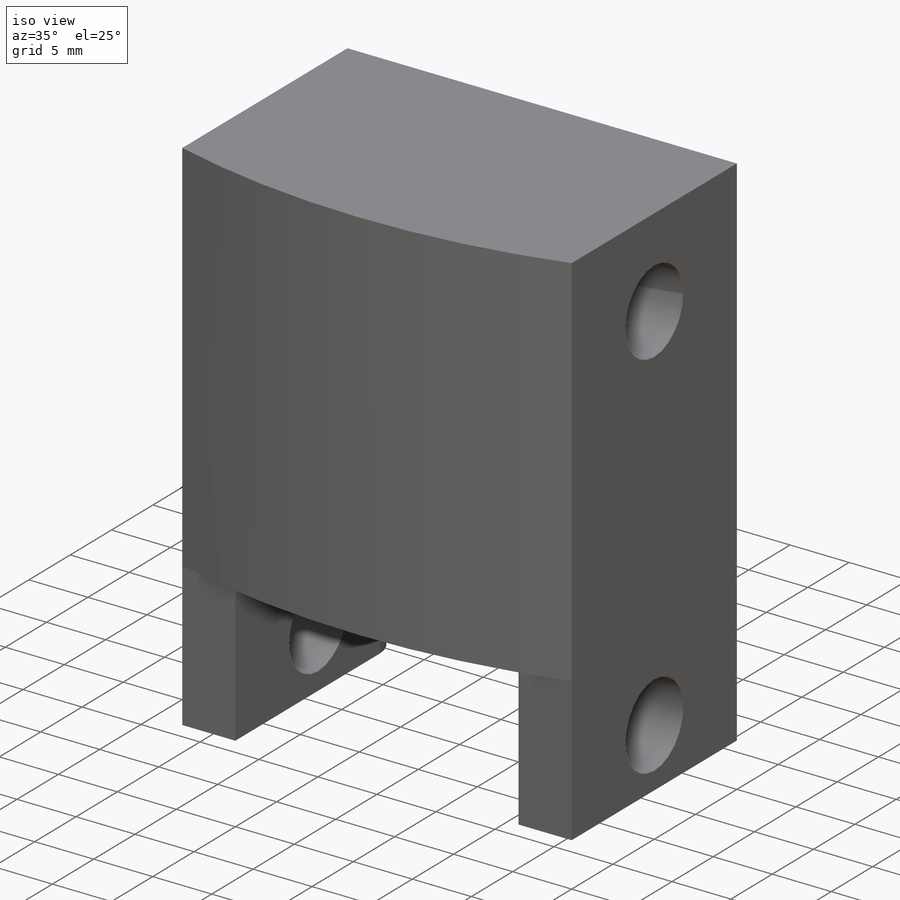
[diagram: iso view]
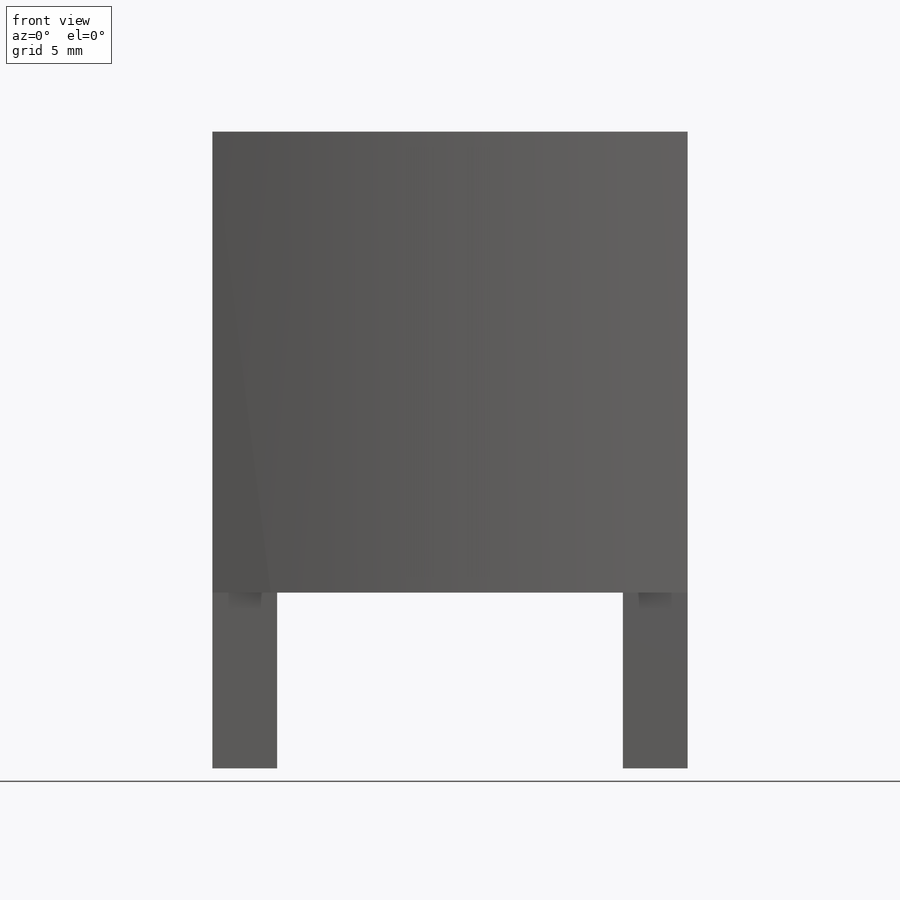
[diagram: front view]
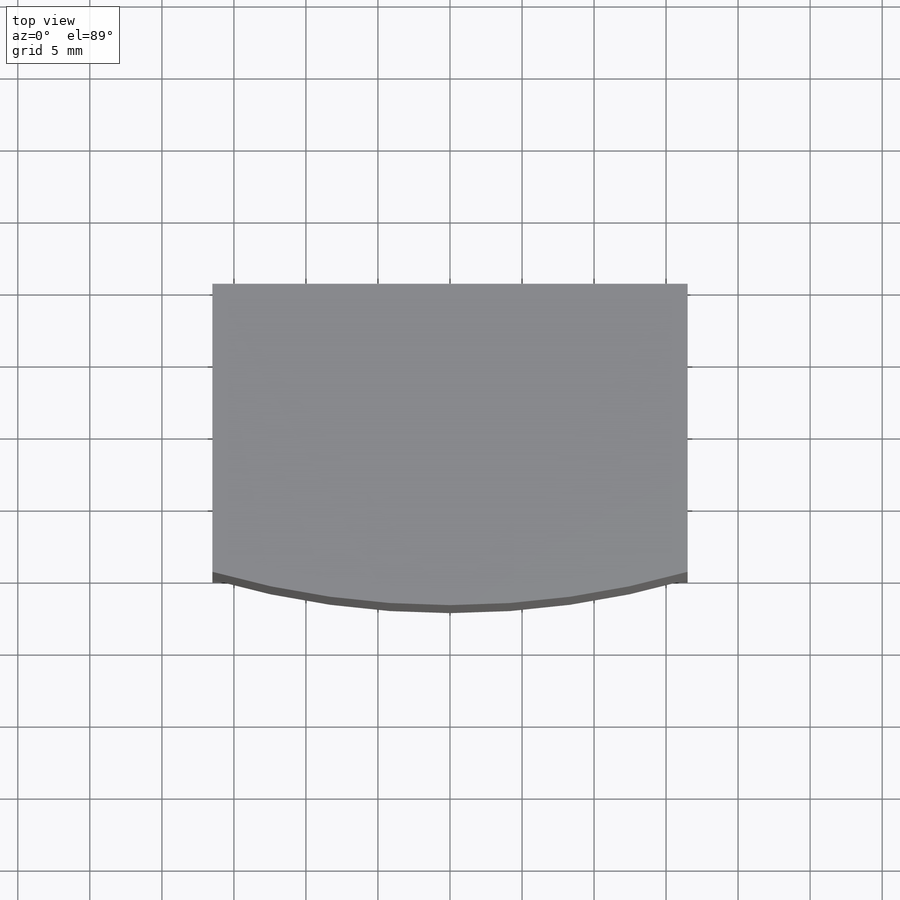
[diagram: top view]
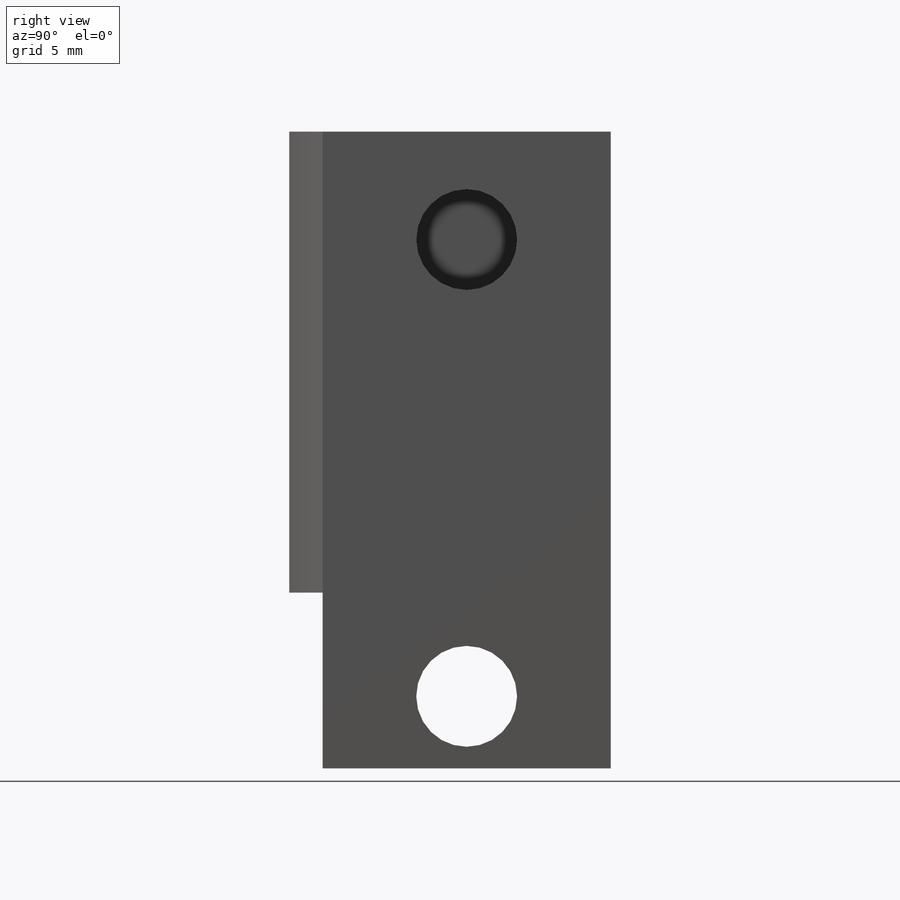
[diagram: right view]
SOLIDWORKS PART (.sldprt)
format: sldprt  version: not decoded by parser v0  size: 227,328 bytes
history: native  units: mm
features: sketch x4, extrude x2, cut_extrude x2, material x1, mirror x1, fillet x1 (+13 scaffold rows collapsed)
feature tree (24):
  scaffold x13  (default folders/planes/origin — collapsed)
  material  "Material <not specified>"
  sketch  "Sketch1"  dims[D3=60.0mm D1=33.0mm D2=20.0mm]
  extrude  "Boss-Extrude1"  Depth=32mm
  sketch  "Sketch3"  dims[D1=12.2mm]
  extrude  "Boss-Extrude2"  Depth=4.5mm
  mirror  "Mirror1"
  sketch  "Sketch4"  dims[D1=7.0mm D2=5.0mm]
  cut_extrude  "Cut-Extrude1"  [1 undecoded]
  sketch  "Sketch5"  dims[D1=7.0mm D2=7.5mm]
  cut_extrude  "Cut-Extrude2"  Depth=9mm
  fillet  "Fillet1"  Radius=2.5mm
decode coverage: 8 of 10 modeling features carry decoded parameters
note: 1 parameter value undecoded
note: suppression state not decoded; provenance and decode notes live in map.json
